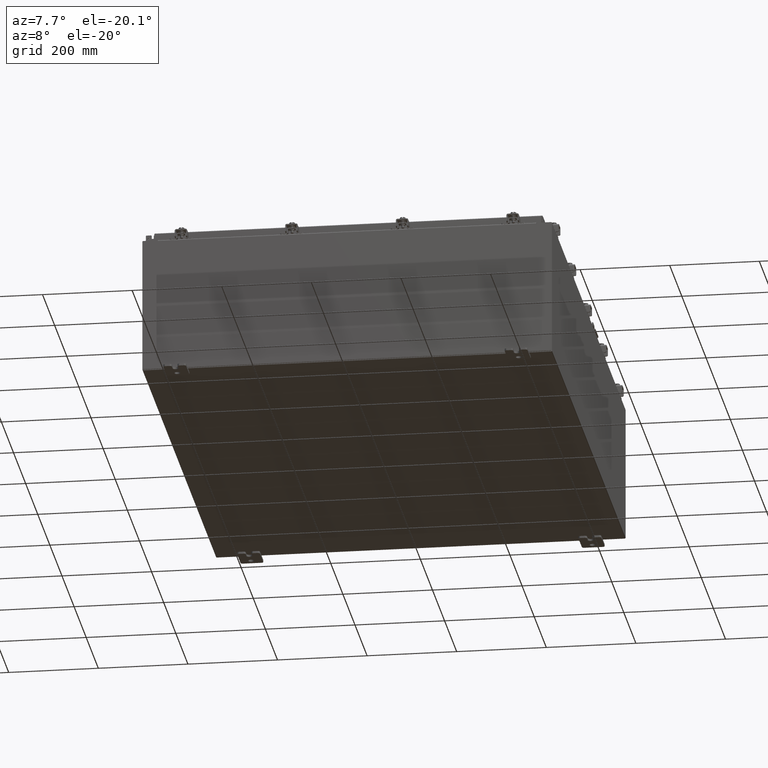
[diagram: clean part render]
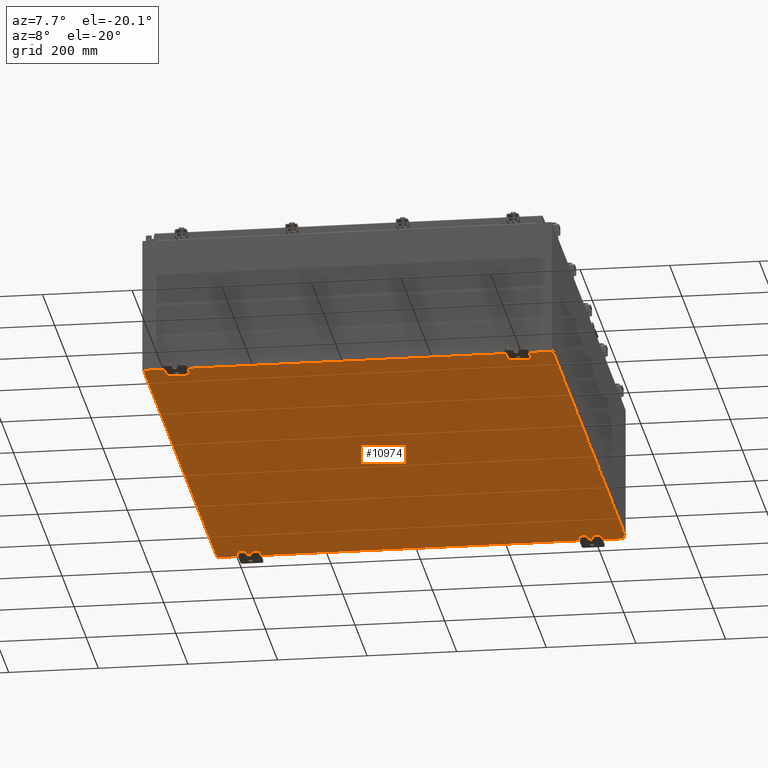
[diagram: same view with one face highlighted and labeled with its STEP entity id]
A machine part, auxiliary view. The second image highlights one B-rep face of the part: STEP entity #10974.
In plain terms, the highlighted planar face has unit normal (0, 0, -1).
Its self-contained STEP definition (entity closure, byte-faithful):
#938 = DIRECTION ( 'NONE',  ( -1.000000000000000000, 0.0000000000000000000, -0.0000000000000000000 ) ) ;
#1911 = DIRECTION ( 'NONE',  ( -0.0000000000000000000, -1.000000000000000000, -8.208677865577646300E-017 ) ) ;
#3457 = EDGE_CURVE ( 'NONE', #25129, #14349, #13643, .T. ) ;
#4915 = VECTOR ( 'NONE', #1911, 39.37007874015748100 ) ;
#6529 = CARTESIAN_POINT ( 'NONE',  ( -18.00000000000000400, -23.92530000000000400, -0.07470000000000000300 ) ) ;
#6558 = ORIENTED_EDGE ( 'NONE', *, *, #23432, .T. ) ;
#6827 = DIRECTION ( 'NONE',  ( -1.000000000000000000, -0.0000000000000000000, -0.0000000000000000000 ) ) ;
#6886 = ORIENTED_EDGE ( 'NONE', *, *, #21649, .T. ) ;
#9421 = EDGE_LOOP ( 'NONE', ( #19010, #6886, #11453, #6558 ) ) ;
#10457 = LINE ( 'NONE', #12711, #16787 ) ;
#10905 = CARTESIAN_POINT ( 'NONE',  ( 17.91229999999999500, 23.92529999999998600, -0.07469999999999688000 ) ) ;
#10974 = ADVANCED_FACE ( 'NONE', ( #21336 ), #24151, .T. ) ;
#11453 = ORIENTED_EDGE ( 'NONE', *, *, #24241, .F. ) ;
#11536 = CARTESIAN_POINT ( 'NONE',  ( 0.0000000000000000000, 0.0000000000000000000, -0.07470000000000000300 ) ) ;
#12711 = CARTESIAN_POINT ( 'NONE',  ( -17.91230000000000500, -23.92529999999998900, -0.07469999999999994700 ) ) ;
#12860 = CARTESIAN_POINT ( 'NONE',  ( -17.91230000000000500, -23.92529999999998600, -0.07469999999999994700 ) ) ;
#12985 = CARTESIAN_POINT ( 'NONE',  ( -17.91230000000000500, 23.92529999999998900, -0.07470000000000000300 ) ) ;
#13643 = LINE ( 'NONE', #6529, #18616 ) ;
#13681 = DIRECTION ( 'NONE',  ( 0.0000000000000000000, 0.0000000000000000000, -1.000000000000000000 ) ) ;
#14163 = VERTEX_POINT ( 'NONE', #10905 ) ;
#14349 = VERTEX_POINT ( 'NONE', #23970 ) ;
#15829 = LINE ( 'NONE', #19623, #21402 ) ;
#16787 = VECTOR ( 'NONE', #21109, 39.37007874015748100 ) ;
#16790 = CARTESIAN_POINT ( 'NONE',  ( 17.91229999999999500, 23.92529999999998900, -0.07469999999999688000 ) ) ;
#17409 = VERTEX_POINT ( 'NONE', #12985 ) ;
#18616 = VECTOR ( 'NONE', #18889, 39.37007874015748100 ) ;
#18889 = DIRECTION ( 'NONE',  ( 1.000000000000000000, 1.214154663850783700E-016, 0.0000000000000000000 ) ) ;
#19010 = ORIENTED_EDGE ( 'NONE', *, *, #3457, .F. ) ;
#19623 = CARTESIAN_POINT ( 'NONE',  ( -18.00000000000000400, 23.92530000000000000, -0.07470000000000000300 ) ) ;
#21109 = DIRECTION ( 'NONE',  ( -0.0000000000000000000, 1.000000000000000000, -0.0000000000000000000 ) ) ;
#21336 = FACE_OUTER_BOUND ( 'NONE', #9421, .T. ) ;
#21402 = VECTOR ( 'NONE', #6827, 39.37007874015748100 ) ;
#21649 = EDGE_CURVE ( 'NONE', #25129, #17409, #10457, .T. ) ;
#21772 = LINE ( 'NONE', #16790, #4915 ) ;
#22459 = AXIS2_PLACEMENT_3D ( 'NONE', #11536, #13681, #938 ) ;
#23432 = EDGE_CURVE ( 'NONE', #14163, #14349, #21772, .T. ) ;
#23970 = CARTESIAN_POINT ( 'NONE',  ( 17.91229999999999500, -23.92530000000000000, -0.07470000000000000300 ) ) ;
#24151 = PLANE ( 'NONE',  #22459 ) ;
#24241 = EDGE_CURVE ( 'NONE', #14163, #17409, #15829, .T. ) ;
#25129 = VERTEX_POINT ( 'NONE', #12860 ) ;